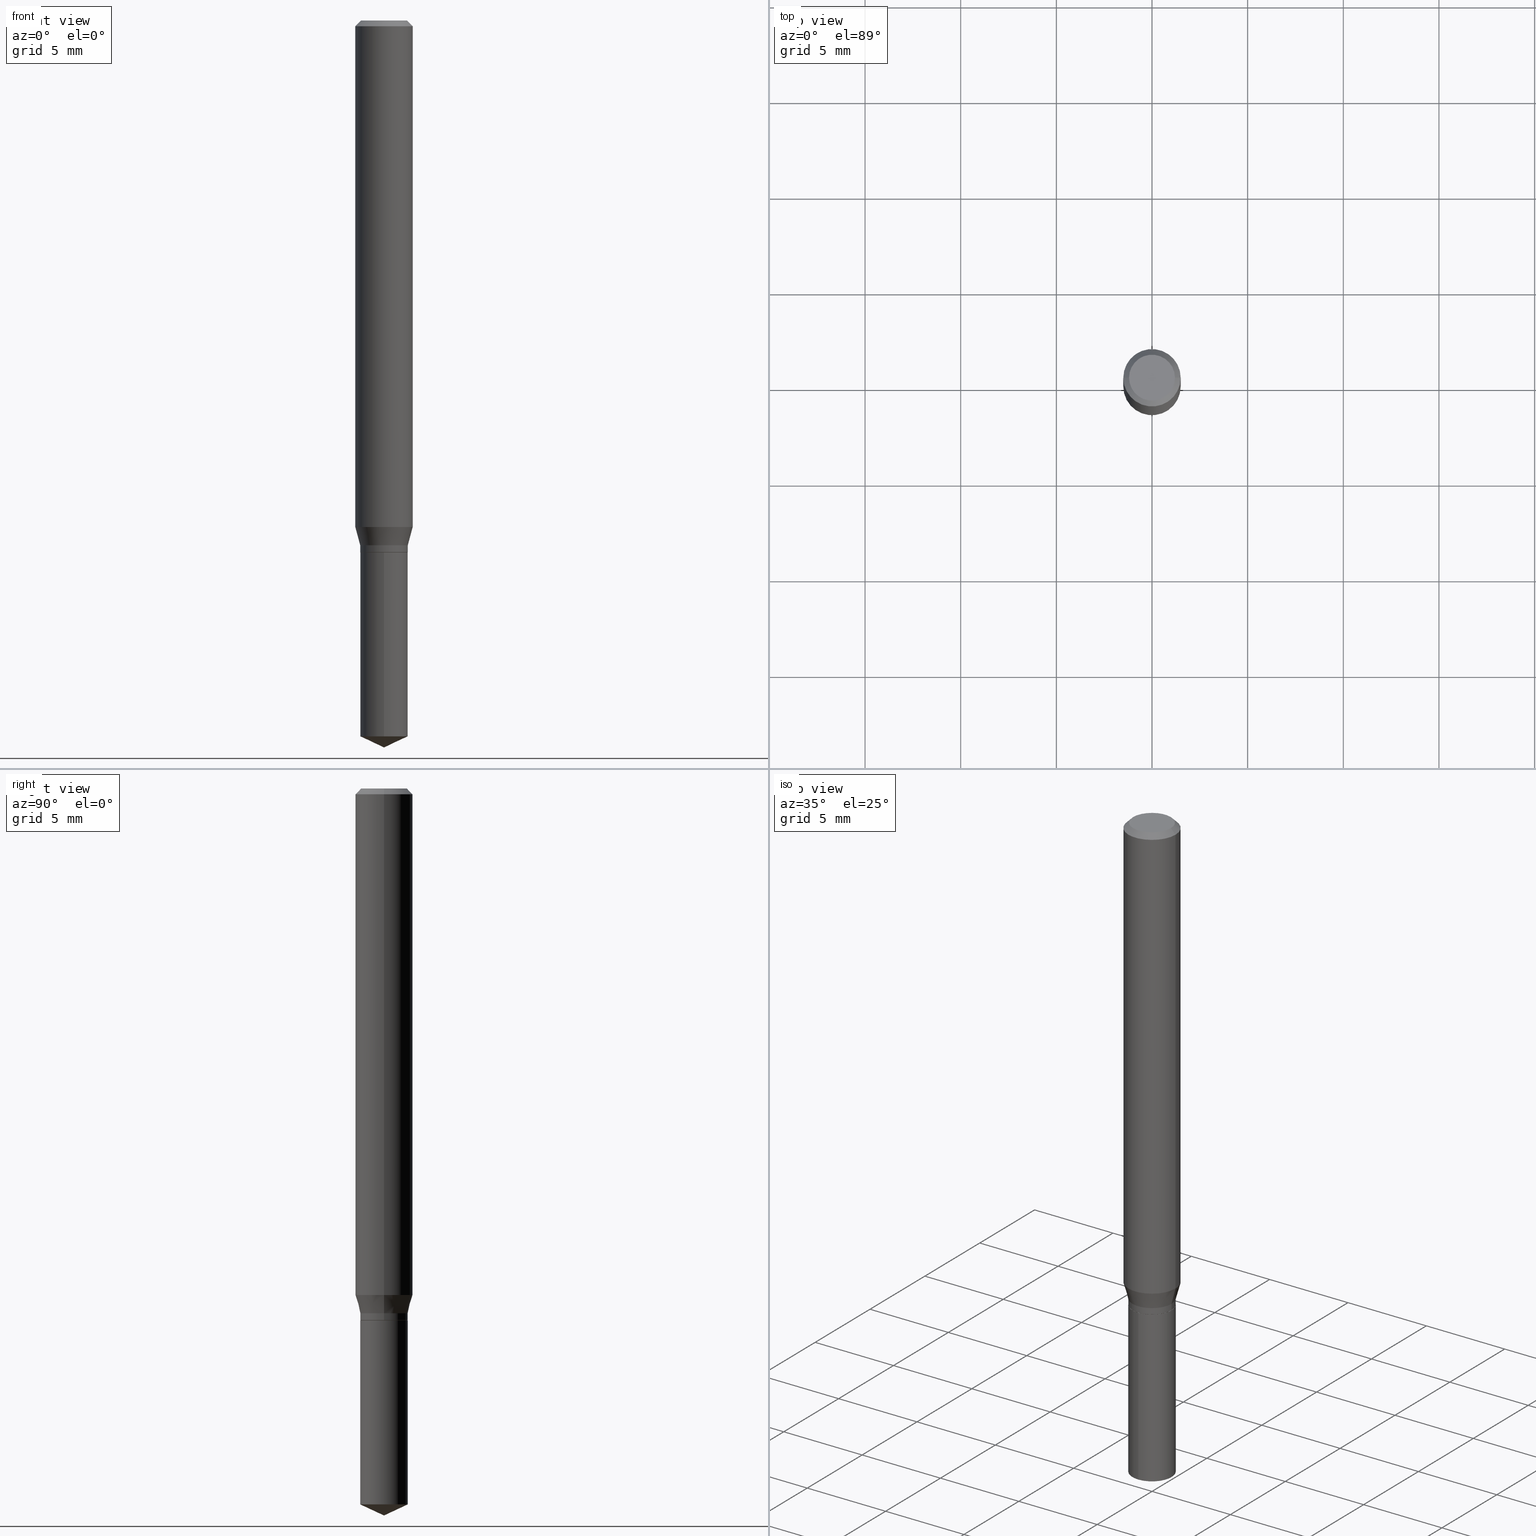
[diagram: canonical four-view strip — front | top / right | iso, engineering-drawing reading convention]
A machine part, canonical four-view strip (front | top / right | iso — engineering-drawing reading convention). The complete STEP part file that produces these views, byte-faithful:
ISO-10303-21;
HEADER;
FILE_DESCRIPTION (( 'STEP AP203' ),
    '1' );
FILE_NAME ('07659.STEP',
    '2024-04-24T00:32:47',
    ( '' ),
    ( '' ),
    'SwSTEP 2.0',
    'SolidWorks 2023',
    '' );
FILE_SCHEMA (( 'CONFIG_CONTROL_DESIGN' ));
ENDSEC;

DATA;
#1 = ORIENTED_EDGE ( 'NONE', *, *, #321, .F. ) ;
#2 = VERTEX_POINT ( 'NONE', #323 ) ;
#3 = DIRECTION ( 'NONE',  ( -2.445468806185136597E-29, 3.491481338843145583E-15, 1.000000000000000000 ) ) ;
#4 = FACE_OUTER_BOUND ( 'NONE', #365, .T. ) ;
#5 = ADVANCED_FACE ( 'NONE', ( #364 ), #474, .T. ) ;
#6 = DIRECTION ( 'NONE',  ( -2.445458899330790108E-29, 3.491495526022433205E-15, 1.000000000000000000 ) ) ;
#7 = DIRECTION ( 'NONE',  ( 1.000000000000000000, -6.982962677686266711E-15, 4.876176775795935232E-29 ) ) ;
#8 = DIRECTION ( 'NONE',  ( -2.445468806185136597E-29, 3.491481338843145583E-15, 1.000000000000000000 ) ) ;
#9 = APPROVAL_PERSON_ORGANIZATION ( #461, #69, #16 ) ;
#10 = DIRECTION ( 'NONE',  ( -0.7071067811865452413, 2.468850131082233000E-15, -0.7071067811865497932 ) ) ;
#11 = EDGE_LOOP ( 'NONE', ( #445, #371, #312, #339 ) ) ;
#12 = PERSON_AND_ORGANIZATION_ROLE ( 'design_supplier' ) ;
#13 = CARTESIAN_POINT ( 'NONE',  ( -0.04900000000000000189, 3.481659405224491045E-16, -2.410278194224903881E-30 ) ) ;
#14 = DIRECTION ( 'NONE',  ( -2.445458899330790108E-29, 3.491495526022433205E-15, 1.000000000000000000 ) ) ;
#15 = PERSON ( 'UNSPECIFIED', 'UNSPECIFIED', 'UNSPECIFIED', ('UNSPECIFIED'), ('UNSPECIFIED'), ('UNSPECIFIED') ) ;
#16 = APPROVAL_ROLE ( '' ) ;
#17 = DIRECTION ( 'NONE',  ( -2.445468806185136877E-29, 3.491481338843145188E-15, 1.000000000000000000 ) ) ;
#18 = AXIS2_PLACEMENT_3D ( 'NONE', #189, #398, #230 ) ;
#19 =( NAMED_UNIT ( * ) SI_UNIT ( $, .STERADIAN. ) SOLID_ANGLE_UNIT ( ) );
#20 = APPROVAL_ROLE ( '' ) ;
#21 = CARTESIAN_POINT ( 'NONE',  ( 2.676565608369631794E-29, -3.821426325363822773E-15, -1.094499999999999806 ) ) ;
#22 = DIRECTION ( 'NONE',  ( 1.000000000000000000, -6.982962677686266711E-15, 0.000000000000000000 ) ) ;
#23 = CARTESIAN_POINT ( 'NONE',  ( 2.640617216918710269E-29, -3.770101549682828202E-15, -1.079799999999999871 ) ) ;
#24 = VERTEX_POINT ( 'NONE', #53 ) ;
#25 = AXIS2_PLACEMENT_3D ( 'NONE', #473, #391, #22 ) ;
#26 = EDGE_CURVE ( 'NONE', #200, #238, #287, .T. ) ;
#27 = CARTESIAN_POINT ( 'NONE',  ( -0.04850000000000000144, -3.474163871346063070E-15, -1.094500000000000028 ) ) ;
#28 = CARTESIAN_POINT ( 'NONE',  ( 0.04850000000000000144, -4.160100015231607087E-15, -1.094500000000000028 ) ) ;
#29 = DIRECTION ( 'NONE',  ( -2.445468806185136597E-29, 3.491481338843145583E-15, 1.000000000000000000 ) ) ;
#30 = ORIENTED_EDGE ( 'NONE', *, *, #324, .T. ) ;
#31 = DIRECTION ( 'NONE',  ( 1.000000000000000000, 0.000000000000000000, 0.000000000000000000 ) ) ;
#32 = APPROVAL_PERSON_ORGANIZATION ( #251, #416, #219 ) ;
#33 = PERSON_AND_ORGANIZATION ( #15, #457 ) ;
#34 = DIRECTION ( 'NONE',  ( -2.445468806185136597E-29, 3.491481338843145583E-15, 1.000000000000000000 ) ) ;
#35 = ORIENTED_EDGE ( 'NONE', *, *, #185, .T. ) ;
#36 = DIRECTION ( 'NONE',  ( 2.445468806185136597E-29, -3.491481338843145583E-15, -1.000000000000000000 ) ) ;
#37 = VERTEX_POINT ( 'NONE', #145 ) ;
#38 = DIRECTION ( 'NONE',  ( -2.445468806185136597E-29, 3.491481338843145583E-15, 1.000000000000000000 ) ) ;
#39 = ADVANCED_FACE ( 'NONE', ( #357 ), #486, .T. ) ;
#40 = ADVANCED_BREP_SHAPE_REPRESENTATION ( '07659', ( #70, #62, #334 ), #384 ) ;
#41 = AXIS2_PLACEMENT_3D ( 'NONE', #240, #36, #66 ) ;
#42 = VECTOR ( 'NONE', #330, 39.37007874015748143 ) ;
#43 = CARTESIAN_POINT ( 'NONE',  ( 3.481659405224757778E-16, 0.04899999999999617856, -1.094500000000000028 ) ) ;
#44 = EDGE_LOOP ( 'NONE', ( #72, #131 ) ) ;
#45 = FACE_OUTER_BOUND ( 'NONE', #82, .T. ) ;
#46 = ORIENTED_EDGE ( 'NONE', *, *, #453, .F. ) ;
#47 = VERTEX_POINT ( 'NONE', #479 ) ;
#48 = EDGE_CURVE ( 'NONE', #342, #180, #489, .T. ) ;
#49 = CALENDAR_DATE ( 2024, 23, 4 ) ;
#50 = AXIS2_PLACEMENT_3D ( 'NONE', #127, #373, #164 ) ;
#51 = FACE_OUTER_BOUND ( 'NONE', #306, .T. ) ;
#52 = CC_DESIGN_PERSON_AND_ORGANIZATION_ASSIGNMENT ( #353, #92, ( #97 ) ) ;
#53 = CARTESIAN_POINT ( 'NONE',  ( 3.658651059288794515E-29, -5.223626456482161457E-15, -1.496099999999999985 ) ) ;
#54 = CLOSED_SHELL ( 'NONE', ( #5, #137, #139, #88, #442 ) ) ;
#55 = DIRECTION ( 'NONE',  ( -2.445468806185136597E-29, 3.491481338843145583E-15, 1.000000000000000000 ) ) ;
#56 = DIRECTION ( 'NONE',  ( -6.982962677686265922E-15, -1.000000000000000000, 2.787599993534962411E-15 ) ) ;
#57 = DIRECTION ( 'NONE',  ( -2.445458899330790108E-29, 3.491495526022433205E-15, 1.000000000000000000 ) ) ;
#58 = CARTESIAN_POINT ( 'NONE',  ( 2.676565608369631794E-29, -3.821426325363822773E-15, -1.094499999999999806 ) ) ;
#59 = DIRECTION ( 'NONE',  ( -0.2588190451025211281, 5.211531920934547886E-15, 0.9659258262890679791 ) ) ;
#60 = CARTESIAN_POINT ( 'NONE',  ( 2.675342873966538993E-29, -3.819680584694400481E-15, -1.093999999999999861 ) ) ;
#61 = PRODUCT_DEFINITION_SHAPE ( 'NONE', 'NONE',  #97 ) ;
#62 = MANIFOLD_SOLID_BREP ( 'Body-Move/Copy2[2]', #299 ) ;
#63 = AXIS2_PLACEMENT_3D ( 'NONE', #383, #133, #288 ) ;
#64 = CARTESIAN_POINT ( 'NONE',  ( 0.05904999999999999832, -4.535783407291118600E-16, -0.01181000000000007565 ) ) ;
#65 = VECTOR ( 'NONE', #490, 39.37007874015748854 ) ;
#66 = DIRECTION ( 'NONE',  ( -1.000000000000000000, 6.982962677686266711E-15, 0.000000000000000000 ) ) ;
#67 = CARTESIAN_POINT ( 'NONE',  ( 0.05904999999999999832, -4.463468013801466955E-16, -0.01181000000000007565 ) ) ;
#68 = DIRECTION ( 'NONE',  ( -2.445458899330790108E-29, 3.491495526022433205E-15, 1.000000000000000000 ) ) ;
#69 = APPROVAL ( #212, 'UNSPECIFIED' ) ;
#70 = MANIFOLD_SOLID_BREP ( 'Body-Move/Copy2[1]', #54 ) ;
#71 = VERTEX_POINT ( 'NONE', #27 ) ;
#72 = ORIENTED_EDGE ( 'NONE', *, *, #324, .F. ) ;
#73 = VECTOR ( 'NONE', #191, 39.37007874015748143 ) ;
#74 = EDGE_LOOP ( 'NONE', ( #147, #250, #271, #80 ) ) ;
#75 = FACE_OUTER_BOUND ( 'NONE', #231, .T. ) ;
#76 = FACE_OUTER_BOUND ( 'NONE', #484, .T. ) ;
#77 = VERTEX_POINT ( 'NONE', #332 ) ;
#78 = DIRECTION ( 'NONE',  ( 6.439704144417036664E-15, 0.9063077870366530453, 0.4226182617406928910 ) ) ;
#79 = APPROVAL_DATE_TIME ( #292, #416 ) ;
#80 = ORIENTED_EDGE ( 'NONE', *, *, #285, .F. ) ;
#81 = EDGE_CURVE ( 'NONE', #71, #77, #338, .T. ) ;
#82 = EDGE_LOOP ( 'NONE', ( #195, #161, #84, #358 ) ) ;
#83 = EDGE_CURVE ( 'NONE', #47, #274, #455, .T. ) ;
#84 = ORIENTED_EDGE ( 'NONE', *, *, #206, .T. ) ;
#85 = AXIS2_PLACEMENT_3D ( 'NONE', #204, #57, #454 ) ;
#86 = VECTOR ( 'NONE', #59, 39.37007874015748854 ) ;
#87 = CARTESIAN_POINT ( 'NONE',  ( 4.132873053354867254E-48, -5.900647395337818946E-34, -1.690012582823346072E-19 ) ) ;
#88 = ADVANCED_FACE ( 'NONE', ( #45 ), #205, .T. ) ;
#89 = EDGE_CURVE ( 'NONE', #241, #180, #235, .T. ) ;
#90 = VECTOR ( 'NONE', #107, 39.37007874015748143 ) ;
#91 = CIRCLE ( 'NONE', #301, 0.04900000000000000189 ) ;
#92 = PERSON_AND_ORGANIZATION_ROLE ( 'creator' ) ;
#93 = DIRECTION ( 'NONE',  ( -6.982962677686265922E-15, -1.000000000000000000, 2.787599993534962411E-15 ) ) ;
#94 = ADVANCED_FACE ( 'NONE', ( #136 ), #291, .T. ) ;
#95 = CARTESIAN_POINT ( 'NONE',  ( -0.05905000000000006771, 4.195754854663396409E-16, -2.904631170795525045E-30 ) ) ;
#96 = DIRECTION ( 'NONE',  ( 6.982962677686265922E-15, 1.000000000000000000, -3.491495526022433599E-15 ) ) ;
#97 = PRODUCT_DEFINITION ( 'UNKNOWN', '', #380, #319 ) ;
#98 = ORIENTED_EDGE ( 'NONE', *, *, #184, .F. ) ;
#99 = COORDINATED_UNIVERSAL_TIME_OFFSET ( 5, 0, .BEHIND. ) ;
#100 = DIRECTION ( 'NONE',  ( -2.445468806185136877E-29, 3.491481338843145188E-15, 1.000000000000000000 ) ) ;
#101 = CARTESIAN_POINT ( 'NONE',  ( 2.640617216918710269E-29, -3.770101549682828202E-15, -1.079799999999999871 ) ) ;
#102 = CIRCLE ( 'NONE', #18, 0.04900000000000000189 ) ;
#103 = CARTESIAN_POINT ( 'NONE',  ( -0.05905000000000013016, -3.219570687426562421E-15, -1.042292889383932275 ) ) ;
#104 = PERSON_AND_ORGANIZATION_ROLE ( 'design_owner' ) ;
#105 = CARTESIAN_POINT ( 'NONE',  ( 2.675342873966538993E-29, -3.819680584694400481E-15, -1.093999999999999861 ) ) ;
#106 = CARTESIAN_POINT ( 'NONE',  ( 0.04850000000000000144, -4.160100015231607087E-15, -1.094500000000000028 ) ) ;
#107 = DIRECTION ( 'NONE',  ( -2.445458899330790108E-29, 3.491495526022433599E-15, 1.000000000000000000 ) ) ;
#108 = VERTEX_POINT ( 'NONE', #177 ) ;
#109 = DIRECTION ( 'NONE',  ( 1.000000000000000000, -6.982962677686265133E-15, 0.000000000000000000 ) ) ;
#110 = DIRECTION ( 'NONE',  ( 2.445458899330789267E-29, -3.491495526022433599E-15, -1.000000000000000000 ) ) ;
#111 = AXIS2_PLACEMENT_3D ( 'NONE', #21, #110, #96 ) ;
#112 = DIRECTION ( 'NONE',  ( 1.000000000000000000, -6.982962677686266711E-15, 4.876185090822587894E-29 ) ) ;
#113 = VERTEX_POINT ( 'NONE', #351 ) ;
#114 = CARTESIAN_POINT ( 'NONE',  ( 0.000000000000000000, 0.000000000000000000, 0.000000000000000000 ) ) ;
#115 = CARTESIAN_POINT ( 'NONE',  ( 2.676565608369632355E-29, -3.821426325363822773E-15, -1.094500000000000028 ) ) ;
#116 = AXIS2_PLACEMENT_3D ( 'NONE', #345, #6, #270 ) ;
#117 = CARTESIAN_POINT ( 'NONE',  ( 3.658672935554494692E-29, -5.223595400746700193E-15, -1.496099999999999985 ) ) ;
#118 = CIRCLE ( 'NONE', #179, 0.04900000000000000189 ) ;
#119 = EDGE_LOOP ( 'NONE', ( #487, #298, #411, #46 ) ) ;
#120 = EDGE_CURVE ( 'NONE', #77, #200, #429, .T. ) ;
#121 = CARTESIAN_POINT ( 'NONE',  ( 2.676565608369632355E-29, -3.821426325363822773E-15, -1.094500000000000028 ) ) ;
#122 = EDGE_LOOP ( 'NONE', ( #272, #198, #480, #401 ) ) ;
#123 = CARTESIAN_POINT ( 'NONE',  ( 3.602785427930276609E-29, -5.143833484606722832E-15, -1.473250924750405311 ) ) ;
#124 = DIRECTION ( 'NONE',  ( 1.000000000000000000, -6.982962677686261977E-15, 0.000000000000000000 ) ) ;
#125 = VERTEX_POINT ( 'NONE', #103 ) ;
#126 = AXIS2_PLACEMENT_3D ( 'NONE', #181, #260, #109 ) ;
#127 = CARTESIAN_POINT ( 'NONE',  ( 2.888098660104664642E-31, -4.123439461173780879E-17, -0.01181000000000007565 ) ) ;
#128 = DIRECTION ( 'NONE',  ( -2.445458899330790108E-29, 3.491495526022433205E-15, 1.000000000000000000 ) ) ;
#129 = CIRCLE ( 'NONE', #325, 0.04900000000000000189 ) ;
#130 = EDGE_CURVE ( 'NONE', #37, #241, #227, .T. ) ;
#131 = ORIENTED_EDGE ( 'NONE', *, *, #282, .F. ) ;
#132 = VECTOR ( 'NONE', #78, 39.37007874015748143 ) ;
#133 = DIRECTION ( 'NONE',  ( -2.445458899330790108E-29, 3.491495526022433205E-15, 1.000000000000000000 ) ) ;
#134 = AXIS2_PLACEMENT_3D ( 'NONE', #432, #211, #247 ) ;
#135 = APPROVAL_DATE_TIME ( #210, #69 ) ;
#136 = FACE_OUTER_BOUND ( 'NONE', #11, .T. ) ;
#137 = ADVANCED_FACE ( 'NONE', ( #51 ), #284, .T. ) ;
#138 = CARTESIAN_POINT ( 'NONE',  ( 3.658651059288795076E-29, -5.223626456482161457E-15, -1.496099999999999985 ) ) ;
#139 = ADVANCED_FACE ( 'NONE', ( #451 ), #447, .T. ) ;
#140 = CC_DESIGN_APPROVAL ( #69, ( #380 ) ) ;
#141 = ORIENTED_EDGE ( 'NONE', *, *, #285, .T. ) ;
#142 = CALENDAR_DATE ( 2024, 23, 4 ) ;
#143 = FACE_OUTER_BOUND ( 'NONE', #119, .T. ) ;
#144 = EDGE_CURVE ( 'NONE', #125, #180, #427, .T. ) ;
#145 = CARTESIAN_POINT ( 'NONE',  ( 0.04724000000000000421, -3.852183633974369345E-16, -3.380025165621689721E-19 ) ) ;
#146 = CARTESIAN_POINT ( 'NONE',  ( 2.548894747896981687E-29, -3.639146172892902703E-15, -1.042292889383932275 ) ) ;
#147 = ORIENTED_EDGE ( 'NONE', *, *, #144, .F. ) ;
#148 = CONICAL_SURFACE ( 'NONE', #213, 0.04900000000000000189, 0.2617993877991498519 ) ;
#149 = CC_DESIGN_PERSON_AND_ORGANIZATION_ASSIGNMENT ( #450, #104, ( #218 ) ) ;
#150 = ORIENTED_EDGE ( 'NONE', *, *, #443, .T. ) ;
#151 = ORIENTED_EDGE ( 'NONE', *, *, #421, .T. ) ;
#152 = LINE ( 'NONE', #28, #214 ) ;
#153 = CARTESIAN_POINT ( 'NONE',  ( -3.421651712066003028E-16, -0.04900000000000382522, -1.094499999999999806 ) ) ;
#154 = ORIENTED_EDGE ( 'NONE', *, *, #302, .F. ) ;
#155 = ORIENTED_EDGE ( 'NONE', *, *, #316, .T. ) ;
#156 = DIRECTION ( 'NONE',  ( 0.000000000000000000, 0.000000000000000000, 1.000000000000000000 ) ) ;
#157 = PLANE ( 'NONE',  #320 ) ;
#158 = CARTESIAN_POINT ( 'NONE',  ( 8.265746106709734507E-48, -1.180129479067563789E-33, -3.380025165646692144E-19 ) ) ;
#159 = CONICAL_SURFACE ( 'NONE', #41, 0.05904999999999999832, 0.7853981633974450594 ) ;
#160 = CIRCLE ( 'NONE', #264, 0.04850000000000000144 ) ;
#161 = ORIENTED_EDGE ( 'NONE', *, *, #269, .T. ) ;
#162 = CARTESIAN_POINT ( 'NONE',  ( 0.05905000000000006771, -4.123439461173745257E-16, 2.879382386107503723E-30 ) ) ;
#163 = ORIENTED_EDGE ( 'NONE', *, *, #350, .F. ) ;
#164 = DIRECTION ( 'NONE',  ( -1.000000000000000000, 6.982962677686266711E-15, 0.000000000000000000 ) ) ;
#165 = ORIENTED_EDGE ( 'NONE', *, *, #48, .F. ) ;
#166 = PERSON_AND_ORGANIZATION ( #15, #457 ) ;
#167 = DIRECTION ( 'NONE',  ( 1.000000000000000000, -6.982962677686266711E-15, 4.876176775795936353E-29 ) ) ;
#168 = AXIS2_PLACEMENT_3D ( 'NONE', #115, #3, #452 ) ;
#169 = DIRECTION ( 'NONE',  ( -2.445468806185136597E-29, 3.491481338843145583E-15, 1.000000000000000000 ) ) ;
#170 = APPLICATION_CONTEXT ( 'configuration controlled 3d designs of mechanical parts and assemblies' ) ;
#171 = UNCERTAINTY_MEASURE_WITH_UNIT (LENGTH_MEASURE( 1.000000000000000082E-05 ), #261, 'distance_accuracy_value', 'NONE');
#172 = CIRCLE ( 'NONE', #368, 0.04850000000000000144 ) ;
#173 = PERSON_AND_ORGANIZATION_ROLE ( 'creator' ) ;
#174 = DIRECTION ( 'NONE',  ( -6.982962677686265922E-15, -1.000000000000000000, 2.787599993534962411E-15 ) ) ;
#175 = CARTESIAN_POINT ( 'NONE',  ( 0.04900000000000000189, -4.112266720889454734E-15, -1.079799999999999871 ) ) ;
#176 = COORDINATED_UNIVERSAL_TIME_OFFSET ( 5, 0, .BEHIND. ) ;
#177 = CARTESIAN_POINT ( 'NONE',  ( 0.05905000000000013016, -4.051490119010276834E-15, -1.042292889383932275 ) ) ;
#178 = DIRECTION ( 'NONE',  ( -2.445468806185136597E-29, 3.491481338843145583E-15, 1.000000000000000000 ) ) ;
#179 = AXIS2_PLACEMENT_3D ( 'NONE', #60, #476, #234 ) ;
#180 = VERTEX_POINT ( 'NONE', #471 ) ;
#181 = CARTESIAN_POINT ( 'NONE',  ( 2.548894747896981687E-29, -3.639146172892902703E-15, -1.042292889383932275 ) ) ;
#182 = VECTOR ( 'NONE', #10, 39.37007874015748143 ) ;
#183 = CARTESIAN_POINT ( 'NONE',  ( 0.04900000000000000189, -3.421651712066270747E-16, 2.389326620140008440E-30 ) ) ;
#184 = EDGE_CURVE ( 'NONE', #2, #274, #129, .T. ) ;
#185 = EDGE_CURVE ( 'NONE', #241, #37, #252, .T. ) ;
#186 = DIRECTION ( 'NONE',  ( 1.000000000000000000, -6.982962677686263555E-15, 0.000000000000000000 ) ) ;
#187 = ORIENTED_EDGE ( 'NONE', *, *, #316, .F. ) ;
#188 = DIRECTION ( 'NONE',  ( 1.000000000000000000, -6.982962677686263555E-15, 0.000000000000000000 ) ) ;
#189 = CARTESIAN_POINT ( 'NONE',  ( 2.640617216918710269E-29, -3.770101549682828202E-15, -1.079799999999999871 ) ) ;
#190 = APPROVAL_STATUS ( 'not_yet_approved' ) ;
#191 = DIRECTION ( 'NONE',  ( 0.7071067811865452413, -7.319954787623248157E-15, -0.7071067811865497932 ) ) ;
#192 = AXIS2_PLACEMENT_3D ( 'NONE', #121, #278, #124 ) ;
#193 = ORIENTED_EDGE ( 'NONE', *, *, #436, .T. ) ;
#194 = ADVANCED_FACE ( 'NONE', ( #444 ), #363, .T. ) ;
#195 = ORIENTED_EDGE ( 'NONE', *, *, #83, .F. ) ;
#196 = SHAPE_DEFINITION_REPRESENTATION ( #61, #40 ) ;
#197 = ORIENTED_EDGE ( 'NONE', *, *, #340, .F. ) ;
#198 = ORIENTED_EDGE ( 'NONE', *, *, #350, .T. ) ;
#199 = ORIENTED_EDGE ( 'NONE', *, *, #443, .F. ) ;
#200 = VERTEX_POINT ( 'NONE', #273 ) ;
#201 = AXIS2_PLACEMENT_3D ( 'NONE', #23, #178, #188 ) ;
#202 = AXIS2_PLACEMENT_3D ( 'NONE', #377, #8, #167 ) ;
#203 = DIRECTION ( 'NONE',  ( -6.982962677686265922E-15, -1.000000000000000000, 5.575199987069924823E-15 ) ) ;
#204 = CARTESIAN_POINT ( 'NONE',  ( -9.261924752013118283E-28, 1.322368428517963298E-13, 37.87397874015748300 ) ) ;
#205 = CYLINDRICAL_SURFACE ( 'NONE', #116, 0.04900000000000000189 ) ;
#206 = EDGE_CURVE ( 'NONE', #113, #2, #266, .T. ) ;
#207 = CONICAL_SURFACE ( 'NONE', #50, 0.05904999999999999832, 0.7853981633974450594 ) ;
#208 = CARTESIAN_POINT ( 'NONE',  ( -0.05904999999999999832, 3.711095515056362547E-16, -0.01181000000000007565 ) ) ;
#209 = ADVANCED_FACE ( 'NONE', ( #76 ), #159, .T. ) ;
#210 = DATE_AND_TIME ( #381, #294 ) ;
#211 = DIRECTION ( 'NONE',  ( -2.445468806185136597E-29, 3.491481338843145583E-15, 1.000000000000000000 ) ) ;
#212 = APPROVAL_STATUS ( 'not_yet_approved' ) ;
#213 = AXIS2_PLACEMENT_3D ( 'NONE', #393, #228, #186 ) ;
#214 = VECTOR ( 'NONE', #322, 39.37007874015748143 ) ;
#215 = ADVANCED_FACE ( 'NONE', ( #310 ), #148, .T. ) ;
#216 = FACE_OUTER_BOUND ( 'NONE', #440, .T. ) ;
#217 = LENGTH_MEASURE_WITH_UNIT ( LENGTH_MEASURE( 0.02539999999999999897 ), #263 );
#218 = PRODUCT ( '07659', '07659', '', ( #438 ) ) ;
#219 = APPROVAL_ROLE ( '' ) ;
#220 = LINE ( 'NONE', #183, #42 ) ;
#221 = DIRECTION ( 'NONE',  ( 1.000000000000000000, -6.982962677686265922E-15, 4.876176775795935793E-29 ) ) ;
#222 =( NAMED_UNIT ( * ) PLANE_ANGLE_UNIT ( ) SI_UNIT ( $, .RADIAN. ) );
#223 = AXIS2_PLACEMENT_3D ( 'NONE', #158, #307, #112 ) ;
#224 = AXIS2_PLACEMENT_3D ( 'NONE', #326, #290, #221 ) ;
#225 = EDGE_CURVE ( 'NONE', #108, #125, #352, .T. ) ;
#226 = LINE ( 'NONE', #67, #73 ) ;
#227 = CIRCLE ( 'NONE', #265, 0.04724000000000000421 ) ;
#228 = DIRECTION ( 'NONE',  ( -2.445468806185136597E-29, 3.491481338843145583E-15, 1.000000000000000000 ) ) ;
#229 = CARTESIAN_POINT ( 'NONE',  ( 3.481659405224850963E-16, 0.04899999999999617162, -1.094500000000000028 ) ) ;
#230 = DIRECTION ( 'NONE',  ( 1.000000000000000000, -6.982962677686263555E-15, 0.000000000000000000 ) ) ;
#231 = EDGE_LOOP ( 'NONE', ( #30, #305, #463, #412 ) ) ;
#232 = DIRECTION ( 'NONE',  ( -2.445468806185136597E-29, 3.491481338843145583E-15, 1.000000000000000000 ) ) ;
#233 = EDGE_CURVE ( 'NONE', #238, #200, #102, .T. ) ;
#234 = DIRECTION ( 'NONE',  ( 1.000000000000000000, -6.982962677686263555E-15, 0.000000000000000000 ) ) ;
#235 = LINE ( 'NONE', #208, #182 ) ;
#236 = ORIENTED_EDGE ( 'NONE', *, *, #421, .F. ) ;
#237 = ADVANCED_FACE ( 'NONE', ( #366 ), #335, .T. ) ;
#238 = VERTEX_POINT ( 'NONE', #175 ) ;
#239 = VECTOR ( 'NONE', #449, 39.37007874015748143 ) ;
#240 = CARTESIAN_POINT ( 'NONE',  ( 2.888098660104664642E-31, -4.123439461173780879E-17, -0.01181000000000007565 ) ) ;
#241 = VERTEX_POINT ( 'NONE', #458 ) ;
#242 = VERTEX_POINT ( 'NONE', #280 ) ;
#243 = DIRECTION ( 'NONE',  ( -0.7071067811864267805, 7.493145998869918709E-15, 0.7071067811866682540 ) ) ;
#244 = ORIENTED_EDGE ( 'NONE', *, *, #296, .T. ) ;
#245 = VECTOR ( 'NONE', #243, 39.37007874015748143 ) ;
#246 = VECTOR ( 'NONE', #434, 39.37007874015748854 ) ;
#247 = DIRECTION ( 'NONE',  ( 1.000000000000000000, -6.982962677686266711E-15, 4.876176775795935232E-29 ) ) ;
#248 = ADVANCED_FACE ( 'NONE', ( #4 ), #207, .T. ) ;
#249 = FACE_OUTER_BOUND ( 'NONE', #74, .T. ) ;
#250 = ORIENTED_EDGE ( 'NONE', *, *, #321, .T. ) ;
#251 = PERSON_AND_ORGANIZATION ( #15, #457 ) ;
#252 = CIRCLE ( 'NONE', #223, 0.04724000000000000421 ) ;
#253 = DATE_AND_TIME ( #317, #467 ) ;
#254 = COORDINATED_UNIVERSAL_TIME_OFFSET ( 5, 0, .BEHIND. ) ;
#255 = AXIS2_PLACEMENT_3D ( 'NONE', #105, #390, #356 ) ;
#256 = CARTESIAN_POINT ( 'NONE',  ( 2.676565608369631794E-29, -3.821426325363822773E-15, -1.094499999999999806 ) ) ;
#257 = CARTESIAN_POINT ( 'NONE',  ( 8.265746106709734507E-48, -1.180129479067563789E-33, -3.380025165646692144E-19 ) ) ;
#258 = FACE_OUTER_BOUND ( 'NONE', #44, .T. ) ;
#259 = ORIENTED_EDGE ( 'NONE', *, *, #184, .T. ) ;
#260 = DIRECTION ( 'NONE',  ( -2.445468806185136597E-29, 3.491481338843145583E-15, 1.000000000000000000 ) ) ;
#261 =( CONVERSION_BASED_UNIT ( 'INCH', #217 ) LENGTH_UNIT ( ) NAMED_UNIT ( #297 ) );
#262 = CC_DESIGN_PERSON_AND_ORGANIZATION_ASSIGNMENT ( #460, #417, ( #403 ) ) ;
#263 =( LENGTH_UNIT ( ) NAMED_UNIT ( * ) SI_UNIT ( $, .METRE. ) );
#264 = AXIS2_PLACEMENT_3D ( 'NONE', #385, #55, #354 ) ;
#265 = AXIS2_PLACEMENT_3D ( 'NONE', #257, #466, #388 ) ;
#266 = LINE ( 'NONE', #153, #90 ) ;
#267 = EDGE_LOOP ( 'NONE', ( #402, #409, #165, #154 ) ) ;
#268 = EDGE_LOOP ( 'NONE', ( #35, #376 ) ) ;
#269 = EDGE_CURVE ( 'NONE', #47, #113, #286, .T. ) ;
#270 = DIRECTION ( 'NONE',  ( -6.982962677686265922E-15, -1.000000000000000000, 2.787599993534962411E-15 ) ) ;
#271 = ORIENTED_EDGE ( 'NONE', *, *, #302, .T. ) ;
#272 = ORIENTED_EDGE ( 'NONE', *, *, #233, .T. ) ;
#273 = CARTESIAN_POINT ( 'NONE',  ( -0.04900000000000000189, -3.446725126666165335E-15, -1.079799999999999871 ) ) ;
#274 = VERTEX_POINT ( 'NONE', #229 ) ;
#275 = CONICAL_SURFACE ( 'NONE', #192, 0.04850000000000000144, 0.7853981633972775267 ) ;
#276 = DATE_AND_TIME ( #142, #361 ) ;
#277 = ORIENTED_EDGE ( 'NONE', *, *, #26, .T. ) ;
#278 = DIRECTION ( 'NONE',  ( -2.445468806185136597E-29, 3.491481338843145583E-15, 1.000000000000000000 ) ) ;
#279 = ADVANCED_FACE ( 'NONE', ( #258 ), #430, .F. ) ;
#280 = CARTESIAN_POINT ( 'NONE',  ( 0.04900000000000000189, -4.161845755901027802E-15, -1.093999999999999861 ) ) ;
#281 = ORIENTED_EDGE ( 'NONE', *, *, #340, .T. ) ;
#282 = EDGE_CURVE ( 'NONE', #71, #333, #160, .T. ) ;
#283 = DIRECTION ( 'NONE',  ( 2.438088387897960049E-29, -3.491481338843145188E-15, -1.000000000000000000 ) ) ;
#284 = CONICAL_SURFACE ( 'NONE', #85, 84.42940631927480410, 1.134464013796318005 ) ;
#285 = EDGE_CURVE ( 'NONE', #180, #342, #327, .T. ) ;
#286 = CIRCLE ( 'NONE', #422, 0.04900000000000000189 ) ;
#287 = CIRCLE ( 'NONE', #420, 0.04900000000000000189 ) ;
#288 = DIRECTION ( 'NONE',  ( -6.982962677686267499E-15, -1.000000000000000000, 3.520397390770434543E-15 ) ) ;
#289 = APPROVAL ( #410, 'UNSPECIFIED' ) ;
#290 = DIRECTION ( 'NONE',  ( -2.438088387897960049E-29, 3.491481338843145188E-15, 1.000000000000000000 ) ) ;
#291 = CYLINDRICAL_SURFACE ( 'NONE', #134, 0.04900000000000000189 ) ;
#292 = DATE_AND_TIME ( #49, #315 ) ;
#293 = DATE_AND_TIME ( #468, #475 ) ;
#294 = LOCAL_TIME ( 20, 32, 47.00000000000000000, #99 ) ;
#295 = CARTESIAN_POINT ( 'NONE',  ( 2.676565608369632355E-29, -3.821426325363822773E-15, -1.094500000000000028 ) ) ;
#296 = EDGE_CURVE ( 'NONE', #238, #108, #360, .T. ) ;
#297 = DIMENSIONAL_EXPONENTS ( 1.000000000000000000, 0.000000000000000000, 0.000000000000000000, 0.000000000000000000, 0.000000000000000000, 0.000000000000000000, 0.000000000000000000 ) ;
#298 = ORIENTED_EDGE ( 'NONE', *, *, #282, .T. ) ;
#299 = CLOSED_SHELL ( 'NONE', ( #397, #209, #194, #39, #94, #237, #215, #419, #248, #405, #279, #386 ) ) ;
#300 = DIRECTION ( 'NONE',  ( 1.000000000000000000, -6.982962677686266711E-15, 0.000000000000000000 ) ) ;
#301 = AXIS2_PLACEMENT_3D ( 'NONE', #418, #14, #174 ) ;
#302 = EDGE_CURVE ( 'NONE', #108, #342, #378, .T. ) ;
#303 = DIRECTION ( 'NONE',  ( 1.000000000000000000, -6.982962677686265133E-15, 0.000000000000000000 ) ) ;
#304 = ORIENTED_EDGE ( 'NONE', *, *, #48, .T. ) ;
#305 = ORIENTED_EDGE ( 'NONE', *, *, #81, .T. ) ;
#306 = EDGE_LOOP ( 'NONE', ( #199, #151, #187 ) ) ;
#307 = DIRECTION ( 'NONE',  ( -2.445468806185136597E-29, 3.491481338843145583E-15, 1.000000000000000000 ) ) ;
#308 = DIRECTION ( 'NONE',  ( -1.000000000000000000, 6.982962677686265922E-15, -4.876176775795935793E-29 ) ) ;
#309 = AXIS2_PLACEMENT_3D ( 'NONE', #114, #34, #396 ) ;
#310 = FACE_OUTER_BOUND ( 'NONE', #464, .T. ) ;
#311 = CIRCLE ( 'NONE', #126, 0.05905000000000013016 ) ;
#312 = ORIENTED_EDGE ( 'NONE', *, *, #233, .F. ) ;
#313 = ORIENTED_EDGE ( 'NONE', *, *, #83, .T. ) ;
#314 = SECURITY_CLASSIFICATION_LEVEL ( 'unclassified' ) ;
#315 = LOCAL_TIME ( 20, 32, 47.00000000000000000, #456 ) ;
#316 = EDGE_CURVE ( 'NONE', #113, #47, #488, .T. ) ;
#317 = CALENDAR_DATE ( 2024, 23, 4 ) ;
#318 = ORIENTED_EDGE ( 'NONE', *, *, #269, .F. ) ;
#319 = DESIGN_CONTEXT ( 'detailed design', #379, 'design' ) ;
#320 = AXIS2_PLACEMENT_3D ( 'NONE', #87, #283, #308 ) ;
#321 = EDGE_CURVE ( 'NONE', #125, #108, #311, .T. ) ;
#322 = DIRECTION ( 'NONE',  ( 0.7071067811864267805, -2.468850131080992517E-15, 0.7071067811866682540 ) ) ;
#323 = CARTESIAN_POINT ( 'NONE',  ( -3.421651712066003028E-16, -0.04900000000000382522, -1.094499999999999806 ) ) ;
#324 = EDGE_CURVE ( 'NONE', #333, #71, #172, .T. ) ;
#325 = AXIS2_PLACEMENT_3D ( 'NONE', #256, #387, #56 ) ;
#326 = CARTESIAN_POINT ( 'NONE',  ( 5.240798681879993109E-30, -6.903908417183963873E-15, -1.094500000000000028 ) ) ;
#327 = CIRCLE ( 'NONE', #25, 0.05904999999999999832 ) ;
#328 = CARTESIAN_POINT ( 'NONE',  ( 2.888098660104664642E-31, -4.123439461173780879E-17, -0.01181000000000007565 ) ) ;
#329 = CARTESIAN_POINT ( 'NONE',  ( 0.04900000000000000189, -4.112266720889454734E-15, -1.079799999999999871 ) ) ;
#330 = DIRECTION ( 'NONE',  ( -2.445468806185136877E-29, 3.491481338843145188E-15, 1.000000000000000000 ) ) ;
#331 = DIRECTION ( 'NONE',  ( -6.982962677686265922E-15, -1.000000000000000000, 5.575199987069924823E-15 ) ) ;
#332 = CARTESIAN_POINT ( 'NONE',  ( -0.04900000000000000189, -3.446725126666165335E-15, -1.093999999999999861 ) ) ;
#333 = VERTEX_POINT ( 'NONE', #106 ) ;
#334 = AXIS2_PLACEMENT_3D ( 'NONE', #485, #156, #31 ) ;
#335 = CYLINDRICAL_SURFACE ( 'NONE', #394, 0.04900000000000000189 ) ;
#336 = ORIENTED_EDGE ( 'NONE', *, *, #89, .T. ) ;
#337 = ORIENTED_EDGE ( 'NONE', *, *, #130, .F. ) ;
#338 = LINE ( 'NONE', #400, #245 ) ;
#339 = ORIENTED_EDGE ( 'NONE', *, *, #372, .F. ) ;
#340 = EDGE_CURVE ( 'NONE', #37, #342, #226, .T. ) ;
#341 = VECTOR ( 'NONE', #100, 39.37007874015748143 ) ;
#342 = VERTEX_POINT ( 'NONE', #64 ) ;
#343 = AXIS2_PLACEMENT_3D ( 'NONE', #123, #413, #203 ) ;
#344 = DIRECTION ( 'NONE',  ( -2.445458899330790108E-29, 3.491495526022433599E-15, 1.000000000000000000 ) ) ;
#345 = CARTESIAN_POINT ( 'NONE',  ( 2.676565608369631794E-29, -3.821426325363822773E-15, -1.094499999999999806 ) ) ;
#346 = PRODUCT_RELATED_PRODUCT_CATEGORY ( 'detail', '', ( #218 ) ) ;
#347 = DATE_TIME_ROLE ( 'creation_date' ) ;
#348 = ORIENTED_EDGE ( 'NONE', *, *, #120, .F. ) ;
#349 = PERSON_AND_ORGANIZATION ( #15, #457 ) ;
#350 = EDGE_CURVE ( 'NONE', #200, #125, #362, .T. ) ;
#351 = CARTESIAN_POINT ( 'NONE',  ( -3.421651712065910830E-16, -0.04900000000000515055, -1.473250924750404867 ) ) ;
#352 = CIRCLE ( 'NONE', #481, 0.05905000000000013016 ) ;
#353 = PERSON_AND_ORGANIZATION ( #15, #457 ) ;
#354 = DIRECTION ( 'NONE',  ( 1.000000000000000000, -6.982962677686261977E-15, 0.000000000000000000 ) ) ;
#355 = CC_DESIGN_PERSON_AND_ORGANIZATION_ASSIGNMENT ( #166, #12, ( #380 ) ) ;
#356 = DIRECTION ( 'NONE',  ( 1.000000000000000000, -6.982962677686263555E-15, 0.000000000000000000 ) ) ;
#357 = FACE_OUTER_BOUND ( 'NONE', #122, .T. ) ;
#358 = ORIENTED_EDGE ( 'NONE', *, *, #436, .F. ) ;
#359 = APPLICATION_PROTOCOL_DEFINITION ( 'international standard', 'config_control_design', 1994, #170 ) ;
#360 = LINE ( 'NONE', #329, #65 ) ;
#361 = LOCAL_TIME ( 20, 32, 47.00000000000000000, #176 ) ;
#362 = LINE ( 'NONE', #441, #86 ) ;
#363 = CYLINDRICAL_SURFACE ( 'NONE', #309, 0.05905000000000006771 ) ;
#364 = FACE_OUTER_BOUND ( 'NONE', #425, .T. ) ;
#365 = EDGE_LOOP ( 'NONE', ( #197, #367, #336, #141 ) ) ;
#366 = FACE_OUTER_BOUND ( 'NONE', #404, .T. ) ;
#367 = ORIENTED_EDGE ( 'NONE', *, *, #185, .F. ) ;
#368 = AXIS2_PLACEMENT_3D ( 'NONE', #295, #232, #399 ) ;
#369 = ORIENTED_EDGE ( 'NONE', *, *, #453, .T. ) ;
#370 = ORIENTED_EDGE ( 'NONE', *, *, #206, .F. ) ;
#371 = ORIENTED_EDGE ( 'NONE', *, *, #120, .T. ) ;
#372 = EDGE_CURVE ( 'NONE', #242, #238, #220, .T. ) ;
#373 = DIRECTION ( 'NONE',  ( 2.445468806185136597E-29, -3.491481338843145583E-15, -1.000000000000000000 ) ) ;
#374 = ORIENTED_EDGE ( 'NONE', *, *, #372, .T. ) ;
#375 = AXIS2_PLACEMENT_3D ( 'NONE', #328, #477, #300 ) ;
#376 = ORIENTED_EDGE ( 'NONE', *, *, #130, .T. ) ;
#377 = CARTESIAN_POINT ( 'NONE',  ( 0.000000000000000000, 0.000000000000000000, 0.000000000000000000 ) ) ;
#378 = LINE ( 'NONE', #162, #239 ) ;
#379 = APPLICATION_CONTEXT ( 'configuration controlled 3d designs of mechanical parts and assemblies' ) ;
#380 = PRODUCT_DEFINITION_FORMATION_WITH_SPECIFIED_SOURCE ( 'ANY', '', #218, .NOT_KNOWN. ) ;
#381 = CALENDAR_DATE ( 2024, 23, 4 ) ;
#382 = DIRECTION ( 'NONE',  ( 1.000000000000000000, -6.982962677686263555E-15, 0.000000000000000000 ) ) ;
#383 = CARTESIAN_POINT ( 'NONE',  ( -9.261924752013118283E-28, 1.322368428517963298E-13, 37.87397874015748300 ) ) ;
#384 =( GEOMETRIC_REPRESENTATION_CONTEXT ( 3 ) GLOBAL_UNCERTAINTY_ASSIGNED_CONTEXT ( ( #171 ) ) GLOBAL_UNIT_ASSIGNED_CONTEXT ( ( #261, #222, #19 ) ) REPRESENTATION_CONTEXT ( 'NONE', 'WORKASPACE' ) );
#385 = CARTESIAN_POINT ( 'NONE',  ( 2.676565608369632355E-29, -3.821426325363822773E-15, -1.094500000000000028 ) ) ;
#386 = ADVANCED_FACE ( 'NONE', ( #143 ), #439, .T. ) ;
#387 = DIRECTION ( 'NONE',  ( -2.445458899330790108E-29, 3.491495526022433205E-15, 1.000000000000000000 ) ) ;
#388 = DIRECTION ( 'NONE',  ( 1.000000000000000000, -6.982962677686266711E-15, 4.876185090822587894E-29 ) ) ;
#389 = APPLICATION_PROTOCOL_DEFINITION ( 'international standard', 'config_control_design', 1994, #379 ) ;
#390 = DIRECTION ( 'NONE',  ( -2.445468806185136597E-29, 3.491481338843145583E-15, 1.000000000000000000 ) ) ;
#391 = DIRECTION ( 'NONE',  ( -2.445468806185136597E-29, 3.491481338843145583E-15, 1.000000000000000000 ) ) ;
#392 = DATE_TIME_ROLE ( 'classification_date' ) ;
#393 = CARTESIAN_POINT ( 'NONE',  ( 2.640617216918710269E-29, -3.770101549682828202E-15, -1.079799999999999871 ) ) ;
#394 = AXIS2_PLACEMENT_3D ( 'NONE', #483, #38, #7 ) ;
#395 = AXIS2_PLACEMENT_3D ( 'NONE', #58, #128, #93 ) ;
#396 = DIRECTION ( 'NONE',  ( 1.000000000000000000, -6.982962677686266711E-15, 4.876176775795936353E-29 ) ) ;
#397 = ADVANCED_FACE ( 'NONE', ( #75 ), #275, .T. ) ;
#398 = DIRECTION ( 'NONE',  ( -2.445468806185136597E-29, 3.491481338843145583E-15, 1.000000000000000000 ) ) ;
#399 = DIRECTION ( 'NONE',  ( 1.000000000000000000, -6.982962677686261977E-15, 0.000000000000000000 ) ) ;
#400 = CARTESIAN_POINT ( 'NONE',  ( -0.04850000000000000144, -3.476813098520174666E-15, -1.094500000000000028 ) ) ;
#401 = ORIENTED_EDGE ( 'NONE', *, *, #296, .F. ) ;
#402 = ORIENTED_EDGE ( 'NONE', *, *, #225, .T. ) ;
#403 = SECURITY_CLASSIFICATION ( '', '', #314 ) ;
#404 = EDGE_LOOP ( 'NONE', ( #348, #369, #374, #478 ) ) ;
#405 = ADVANCED_FACE ( 'NONE', ( #415 ), #157, .F. ) ;
#406 = EDGE_LOOP ( 'NONE', ( #236, #150, #318 ) ) ;
#407 = APPROVAL_DATE_TIME ( #276, #289 ) ;
#408 = CYLINDRICAL_SURFACE ( 'NONE', #202, 0.05905000000000006771 ) ;
#409 = ORIENTED_EDGE ( 'NONE', *, *, #144, .T. ) ;
#410 = APPROVAL_STATUS ( 'not_yet_approved' ) ;
#411 = ORIENTED_EDGE ( 'NONE', *, *, #469, .T. ) ;
#412 = ORIENTED_EDGE ( 'NONE', *, *, #469, .F. ) ;
#413 = DIRECTION ( 'NONE',  ( -2.445458899330790108E-29, 3.491495526022433205E-15, 1.000000000000000000 ) ) ;
#414 = CIRCLE ( 'NONE', #255, 0.04900000000000000189 ) ;
#415 = FACE_OUTER_BOUND ( 'NONE', #268, .T. ) ;
#416 = APPROVAL ( #190, 'UNSPECIFIED' ) ;
#417 = PERSON_AND_ORGANIZATION_ROLE ( 'classification_officer' ) ;
#418 = CARTESIAN_POINT ( 'NONE',  ( 2.676565608369631794E-29, -3.821426325363822773E-15, -1.094499999999999806 ) ) ;
#419 = ADVANCED_FACE ( 'NONE', ( #249 ), #408, .T. ) ;
#420 = AXIS2_PLACEMENT_3D ( 'NONE', #101, #169, #382 ) ;
#421 = EDGE_CURVE ( 'NONE', #24, #47, #446, .T. ) ;
#422 = AXIS2_PLACEMENT_3D ( 'NONE', #435, #68, #331 ) ;
#423 = CC_DESIGN_SECURITY_CLASSIFICATION ( #403, ( #380 ) ) ;
#424 = VECTOR ( 'NONE', #344, 39.37007874015748143 ) ;
#425 = EDGE_LOOP ( 'NONE', ( #155, #313, #98, #370 ) ) ;
#426 = COORDINATED_UNIVERSAL_TIME_OFFSET ( 5, 0, .BEHIND. ) ;
#427 = LINE ( 'NONE', #95, #465 ) ;
#428 = PLANE ( 'NONE',  #111 ) ;
#429 = LINE ( 'NONE', #13, #341 ) ;
#430 = PLANE ( 'NONE',  #224 ) ;
#431 = CC_DESIGN_DATE_AND_TIME_ASSIGNMENT ( #293, #392, ( #403 ) ) ;
#432 = CARTESIAN_POINT ( 'NONE',  ( 0.000000000000000000, 0.000000000000000000, 0.000000000000000000 ) ) ;
#433 = CC_DESIGN_APPROVAL ( #416, ( #97 ) ) ;
#434 = DIRECTION ( 'NONE',  ( -6.328713451373380423E-15, -0.9063077870366499367, 0.4226182617406991082 ) ) ;
#435 = CARTESIAN_POINT ( 'NONE',  ( 3.602785427930276609E-29, -5.143833484606722832E-15, -1.473250924750405311 ) ) ;
#436 = EDGE_CURVE ( 'NONE', #274, #2, #91, .T. ) ;
#437 = CC_DESIGN_DATE_AND_TIME_ASSIGNMENT ( #253, #347, ( #97 ) ) ;
#438 = MECHANICAL_CONTEXT ( 'NONE', #170, 'mechanical' ) ;
#439 = CONICAL_SURFACE ( 'NONE', #168, 0.04850000000000000144, 0.7853981633972775267 ) ;
#440 = EDGE_LOOP ( 'NONE', ( #259, #193 ) ) ;
#441 = CARTESIAN_POINT ( 'NONE',  ( -0.04900000000000000189, -3.421935609160378802E-15, -1.079799999999999871 ) ) ;
#442 = ADVANCED_FACE ( 'NONE', ( #216 ), #428, .F. ) ;
#443 = EDGE_CURVE ( 'NONE', #24, #113, #472, .T. ) ;
#444 = FACE_OUTER_BOUND ( 'NONE', #267, .T. ) ;
#445 = ORIENTED_EDGE ( 'NONE', *, *, #462, .T. ) ;
#446 = LINE ( 'NONE', #117, #132 ) ;
#447 = CONICAL_SURFACE ( 'NONE', #63, 84.42940631927480410, 1.134464013796318005 ) ;
#448 = APPROVAL_PERSON_ORGANIZATION ( #33, #289, #20 ) ;
#449 = DIRECTION ( 'NONE',  ( -2.445468806185136877E-29, 3.491481338843145188E-15, 1.000000000000000000 ) ) ;
#450 = PERSON_AND_ORGANIZATION ( #15, #457 ) ;
#451 = FACE_OUTER_BOUND ( 'NONE', #406, .T. ) ;
#452 = DIRECTION ( 'NONE',  ( 1.000000000000000000, -6.982962677686261977E-15, 0.000000000000000000 ) ) ;
#453 = EDGE_CURVE ( 'NONE', #77, #242, #414, .T. ) ;
#454 = DIRECTION ( 'NONE',  ( -6.982962677686267499E-15, -1.000000000000000000, 3.520397390770434543E-15 ) ) ;
#455 = LINE ( 'NONE', #43, #424 ) ;
#456 = COORDINATED_UNIVERSAL_TIME_OFFSET ( 5, 0, .BEHIND. ) ;
#457 = ORGANIZATION ( 'UNSPECIFIED', 'UNSPECIFIED', '' ) ;
#458 = CARTESIAN_POINT ( 'NONE',  ( -0.04724000000000000421, 3.504923541997677355E-16, -3.380025165670481712E-19 ) ) ;
#459 = CC_DESIGN_APPROVAL ( #289, ( #403 ) ) ;
#460 = PERSON_AND_ORGANIZATION ( #15, #457 ) ;
#461 = PERSON_AND_ORGANIZATION ( #15, #457 ) ;
#462 = EDGE_CURVE ( 'NONE', #242, #77, #118, .T. ) ;
#463 = ORIENTED_EDGE ( 'NONE', *, *, #462, .F. ) ;
#464 = EDGE_LOOP ( 'NONE', ( #163, #277, #244, #1 ) ) ;
#465 = VECTOR ( 'NONE', #17, 39.37007874015748143 ) ;
#466 = DIRECTION ( 'NONE',  ( -2.445468806185136597E-29, 3.491481338843145583E-15, 1.000000000000000000 ) ) ;
#467 = LOCAL_TIME ( 20, 32, 47.00000000000000000, #426 ) ;
#468 = CALENDAR_DATE ( 2024, 23, 4 ) ;
#469 = EDGE_CURVE ( 'NONE', #333, #242, #152, .T. ) ;
#470 = CC_DESIGN_PERSON_AND_ORGANIZATION_ASSIGNMENT ( #349, #173, ( #380 ) ) ;
#471 = CARTESIAN_POINT ( 'NONE',  ( -0.05904999999999999832, -1.420614798285979737E-15, -0.01181000000000007565 ) ) ;
#472 = LINE ( 'NONE', #138, #246 ) ;
#473 = CARTESIAN_POINT ( 'NONE',  ( 2.888098660104664642E-31, -4.123439461173780879E-17, -0.01181000000000007565 ) ) ;
#474 = CYLINDRICAL_SURFACE ( 'NONE', #395, 0.04900000000000000189 ) ;
#475 = LOCAL_TIME ( 20, 32, 47.00000000000000000, #254 ) ;
#476 = DIRECTION ( 'NONE',  ( -2.445468806185136597E-29, 3.491481338843145583E-15, 1.000000000000000000 ) ) ;
#477 = DIRECTION ( 'NONE',  ( -2.445468806185136597E-29, 3.491481338843145583E-15, 1.000000000000000000 ) ) ;
#478 = ORIENTED_EDGE ( 'NONE', *, *, #26, .F. ) ;
#479 = CARTESIAN_POINT ( 'NONE',  ( 3.481659405224851456E-16, 0.04899999999999486017, -1.473250924750405533 ) ) ;
#480 = ORIENTED_EDGE ( 'NONE', *, *, #225, .F. ) ;
#481 = AXIS2_PLACEMENT_3D ( 'NONE', #146, #29, #303 ) ;
#482 = ORIENTED_EDGE ( 'NONE', *, *, #89, .F. ) ;
#483 = CARTESIAN_POINT ( 'NONE',  ( 0.000000000000000000, 0.000000000000000000, 0.000000000000000000 ) ) ;
#484 = EDGE_LOOP ( 'NONE', ( #337, #281, #304, #482 ) ) ;
#485 = CARTESIAN_POINT ( 'NONE',  ( 0.000000000000000000, 0.000000000000000000, 0.000000000000000000 ) ) ;
#486 = CONICAL_SURFACE ( 'NONE', #201, 0.04900000000000000189, 0.2617993877991498519 ) ;
#487 = ORIENTED_EDGE ( 'NONE', *, *, #81, .F. ) ;
#488 = CIRCLE ( 'NONE', #343, 0.04900000000000000189 ) ;
#489 = CIRCLE ( 'NONE', #375, 0.05904999999999999832 ) ;
#490 = DIRECTION ( 'NONE',  ( 0.2588190451025211281, 1.565188264969622954E-15, 0.9659258262890679791 ) ) ;
ENDSEC;
END-ISO-10303-21;
